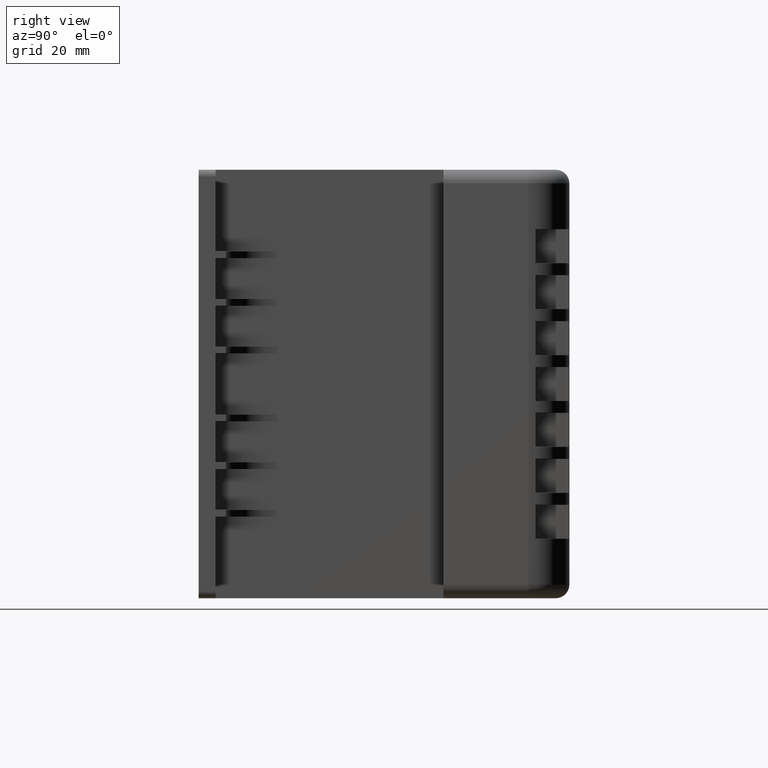
[diagram: clean part render]
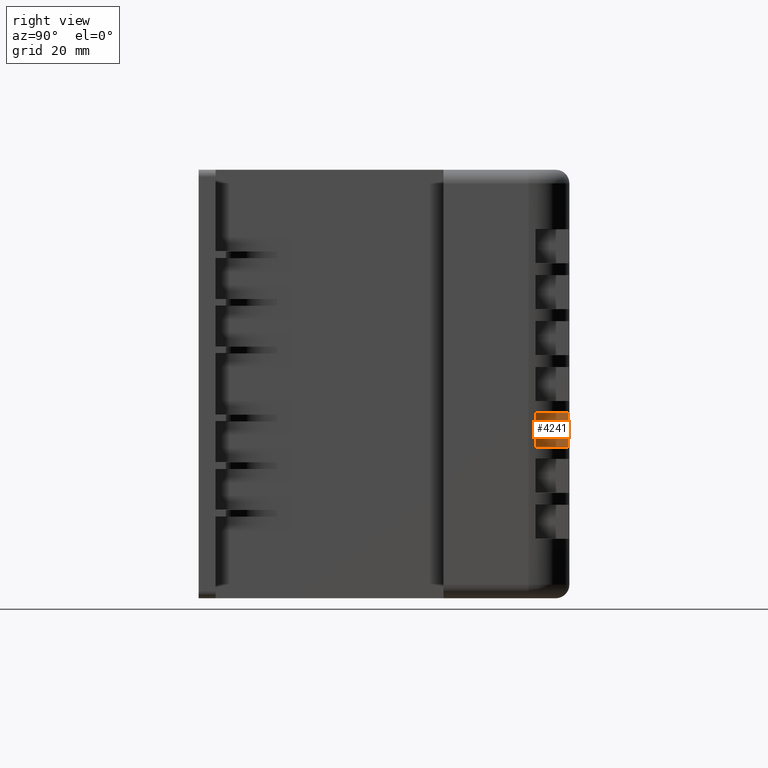
[diagram: same view with one face highlighted and labeled with its STEP entity id]
A machine part, right view. The second image highlights one B-rep face of the part: STEP entity #4241.
In plain terms, the highlighted planar face has unit normal (-1, 0, 0).
Its self-contained STEP definition (entity closure, byte-faithful):
#528=FACE_OUTER_BOUND('',#820,.T.);
#820=EDGE_LOOP('',(#3537,#3538,#3539,#3540));
#1178=LINE('',#6953,#1570);
#1200=LINE('',#7006,#1592);
#1202=LINE('',#7009,#1594);
#1215=LINE('',#7039,#1607);
#1570=VECTOR('',#5805,10.);
#1592=VECTOR('',#5853,10.);
#1594=VECTOR('',#5857,10.);
#1607=VECTOR('',#5896,10.);
#1936=VERTEX_POINT('',#6946);
#1939=VERTEX_POINT('',#6951);
#1956=VERTEX_POINT('',#7003);
#1957=VERTEX_POINT('',#7005);
#2450=EDGE_CURVE('',#1939,#1936,#1178,.T.);
#2476=EDGE_CURVE('',#1957,#1956,#1200,.T.);
#2478=EDGE_CURVE('',#1936,#1956,#1202,.T.);
#2491=EDGE_CURVE('',#1939,#1957,#1215,.T.);
#3537=ORIENTED_EDGE('',*,*,#2450,.F.);
#3538=ORIENTED_EDGE('',*,*,#2491,.T.);
#3539=ORIENTED_EDGE('',*,*,#2476,.T.);
#3540=ORIENTED_EDGE('',*,*,#2478,.F.);
#3738=PLANE('',#4732);
#4241=ADVANCED_FACE('',(#528),#3738,.F.);
#4732=AXIS2_PLACEMENT_3D('',#7038,#5894,#5895);
#5805=DIRECTION('',(-3.41426618094879E-16,0.,-1.));
#5853=DIRECTION('',(1.11022302462516E-16,0.,-1.));
#5857=DIRECTION('',(0.,-1.,0.));
#5894=DIRECTION('center_axis',(-1.,0.,-1.11022302462516E-16));
#5895=DIRECTION('ref_axis',(1.11022302462516E-16,0.,-1.));
#5896=DIRECTION('',(0.,-1.,0.));
#6946=CARTESIAN_POINT('',(-9.99999999999999,36.8321595661992,44.5));
#6951=CARTESIAN_POINT('',(-9.99999999999999,36.8321595661992,54.5));
#6953=CARTESIAN_POINT('',(-10.,36.8321595661992,94.5));
#7003=CARTESIAN_POINT('',(-9.99999999999999,27.,44.5));
#7005=CARTESIAN_POINT('',(-9.99999999999999,27.,54.5));
#7006=CARTESIAN_POINT('',(-9.99999999999999,27.,44.5));
#7009=CARTESIAN_POINT('',(-9.99999999999999,37.,44.5));
#7038=CARTESIAN_POINT('Origin',(-9.99999999999999,37.,54.5));
#7039=CARTESIAN_POINT('',(-9.99999999999999,37.,54.5));